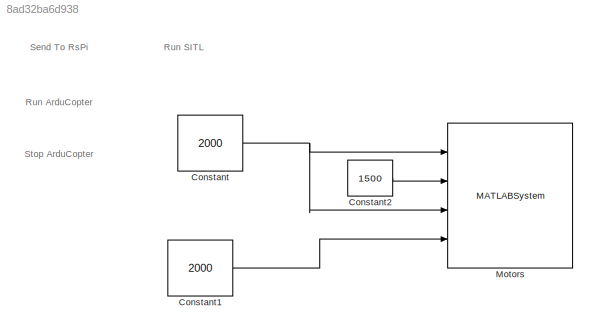
MODEL slx_8ad32ba6d938
KIND model
BLOCK [Constant] Constant
  Value = 2000
  VectorParams1D = off
BLOCK [Constant] Constant1
  Value = 2000
  VectorParams1D = off
BLOCK [Constant] Constant2
  Value = 1500
  VectorParams1D = off
BLOCK [MATLABSystem] Motors
  MaskDisplay = disp('Motors');\nport_label('input',1,'roll');\nport_label('input',2,'pitch');\nport_label('input',3,'yaw');\nport_label('input',4,'throttle');
  MaskType = Motors
  Ports = [4]
  System = Motors
ANNOTATION (root): Run ArduCopter
ANNOTATION (root): Run SITL
ANNOTATION (root): Send To RsPi
ANNOTATION (root): Stop ArduCopter
LINE Constant1:1 -> Motors:4
LINE Constant2:1 -> Motors:2
NET Constant:1 -> Motors:1, Motors:3
note: NET lines group one-source signal fan-out (src -> all destinations, sorted); 1:1 wires keep LINE
